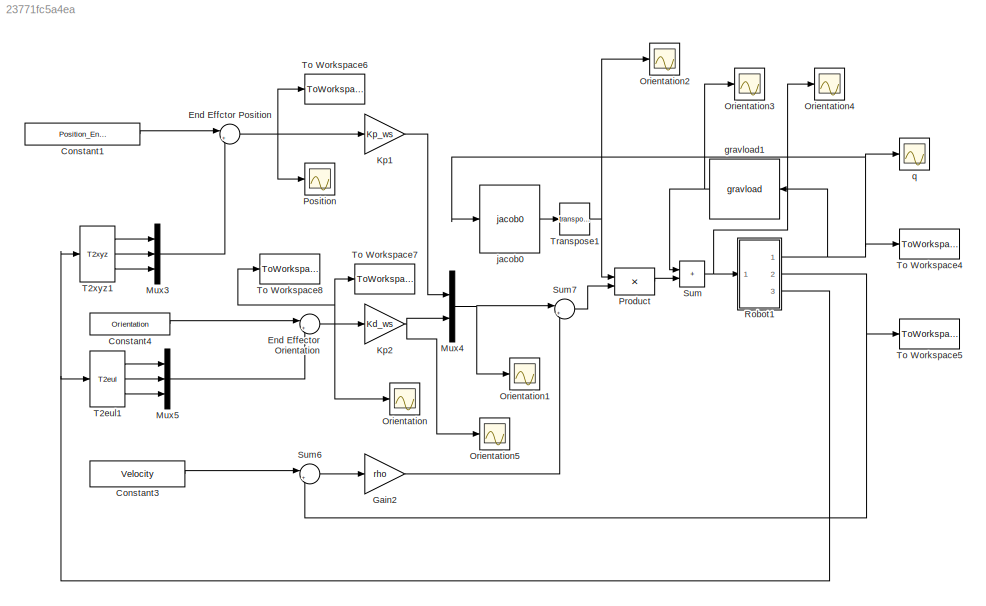
MODEL slx_23771fc5a4ea
KIND model
CONFIG AbsTol = auto
CONFIG EnableMultiTasking = off
CONFIG FixedStep = 1e-3
CONFIG MaxStep = auto
CONFIG MinStep = auto
CONFIG RelTol = 1e-5
CONFIG SampleTimeConstraint = Unconstrained
CONFIG SolverName = VariableStepAuto
CONFIG StartTime = 0.0
CONFIG StopTime = 3
BLOCK [Constant] Constant1
  Value = Position_End_effector
BLOCK [Constant] Constant3
  Value = Velocity
BLOCK [Constant] Constant4
  Value = Orientation
BLOCK [Sum] End Effctor Position
  Inputs = |+-
  Ports = [2, 1]
BLOCK [Sum] End Effector Orientation
  Inputs = |+-
  Ports = [2, 1]
BLOCK [Gain] Gain2
  Gain = rho
BLOCK [Gain] Kp1
  Gain = Kp_ws
BLOCK [Gain] Kp2
  Gain = Kd_ws
BLOCK [Mux] Mux3
  DisplayOption = bar
  Inputs = 3
  Ports = [3, 1]
BLOCK [Mux] Mux4
  DisplayOption = bar
  Inputs = 2
  Ports = [2, 1]
BLOCK [Mux] Mux5
  DisplayOption = bar
  Inputs = 3
  Ports = [3, 1]
BLOCK [Scope] Orientation
  Floating = off
  NumInputPorts = 1
  Ports = [1]
  ScopeSpecificationString = Simulink.scopes.TimeScopeBlockCfg('CurrentConfiguration', extmgr.ConfigurationSet(extmgr.Configuration('Core','General UI',true),extmgr.Configuration('Core','Source UI',true),extmgr.Configuration('Sources','WiredSimulink',true,'DataLoggingVariableName','ScopeData2'),extmgr.Configuration('Visuals','Time Domain',true,'SerializedDisplays',{struct('MinYLimReal','-0.2018','MaxYLimReal','0.09779','YLabe...<+1519ch>
BLOCK [Scope] Orientation1
  Floating = off
  NumInputPorts = 1
  Ports = [1]
  ScopeSpecificationString = Simulink.scopes.TimeScopeBlockCfg('CurrentConfiguration', extmgr.ConfigurationSet(extmgr.Configuration('Core','General UI',true),extmgr.Configuration('Core','Source UI',true),extmgr.Configuration('Sources','WiredSimulink',true,'DataLoggingVariableName','ScopeData1'),extmgr.Configuration('Visuals','Time Domain',true,'SerializedDisplays',{struct('MinYLimReal','-71.92583','MaxYLimReal','182.52468','Y...<+1464ch>
BLOCK [Scope] Orientation2
  Floating = off
  NumInputPorts = 1
  Ports = [1]
  ScopeSpecificationString = Simulink.scopes.TimeScopeBlockCfg('CurrentConfiguration', extmgr.ConfigurationSet(extmgr.Configuration('Core','General UI',true),extmgr.Configuration('Core','Source UI',true),extmgr.Configuration('Sources','WiredSimulink',true,'DataLoggingVariableName','ScopeData2'),extmgr.Configuration('Visuals','Time Domain',true,'SerializedDisplays',{struct('MinYLimReal','-0.34862','MaxYLimReal','3.5135','YLabe...<+1966ch>
BLOCK [Scope] Orientation3
  Floating = off
  NumInputPorts = 1
  Ports = [1]
  ScopeSpecificationString = Simulink.scopes.TimeScopeBlockCfg('CurrentConfiguration', extmgr.ConfigurationSet(extmgr.Configuration('Core','General UI',true),extmgr.Configuration('Core','Source UI',true),extmgr.Configuration('Sources','WiredSimulink',true,'DataLoggingVariableName','ScopeData3'),extmgr.Configuration('Visuals','Time Domain',true,'SerializedDisplays',{struct('MinYLimReal','-7.00066','MaxYLimReal','42.39498','YLa...<+1490ch>
BLOCK [Scope] Orientation4
  Floating = off
  NumInputPorts = 1
  Ports = [1]
  ScopeSpecificationString = Simulink.scopes.TimeScopeBlockCfg('CurrentConfiguration', extmgr.ConfigurationSet(extmgr.Configuration('Core','General UI',true),extmgr.Configuration('Core','Source UI',true),extmgr.Configuration('Sources','WiredSimulink',true,'DataLoggingVariableName','ScopeData4'),extmgr.Configuration('Visuals','Time Domain',true,'SerializedDisplays',{struct('MinYLimReal','-30.00637','MaxYLimReal','177.86697','Y...<+1460ch>
BLOCK [Scope] Orientation5
  Floating = off
  NumInputPorts = 1
  Ports = [1]
  ScopeSpecificationString = Simulink.scopes.TimeScopeBlockCfg('CurrentConfiguration', extmgr.ConfigurationSet(extmgr.Configuration('Core','General UI',true),extmgr.Configuration('Core','Source UI',true),extmgr.Configuration('Sources','WiredSimulink',true,'DataLoggingVariableName','ScopeData5'),extmgr.Configuration('Visuals','Time Domain',true,'SerializedDisplays',{struct('MinYLimReal','-71.92583','MaxYLimReal','182.52468','Y...<+1437ch>
BLOCK [Scope] Position
  Floating = off
  NumInputPorts = 1
  Ports = [1]
  ScopeSpecificationString = Simulink.scopes.TimeScopeBlockCfg('CurrentConfiguration', extmgr.ConfigurationSet(extmgr.Configuration('Core','General UI',true),extmgr.Configuration('Core','Source UI',true),extmgr.Configuration('Sources','WiredSimulink',true,'DataLoggingVariableName','ScopeData3'),extmgr.Configuration('Visuals','Time Domain',true,'SerializedDisplays',{struct('MinYLimReal','-0.03107','MaxYLimReal','0.01839','YLab...<+1599ch>
BLOCK [Product] Product
  Multiplication = Matrix(*)
  Ports = [2, 1]
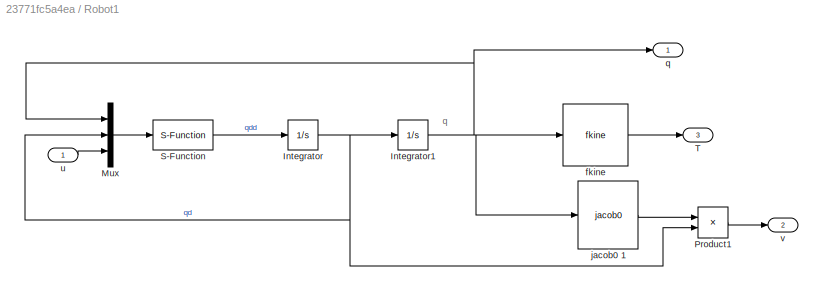
BLOCK [SubSystem] Robot1
  Ports = [1, 3]
  RequestExecContextInheritance = off
BLOCK [Integrator] Robot1/Integrator
  Ports = [1, 1]
BLOCK [Integrator] Robot1/Integrator1
  InitialCondition = q0
  Ports = [1, 1]
BLOCK [Mux] Robot1/Mux
  DisplayOption = bar
  Inputs = 3
  Ports = [3, 1]
BLOCK [Product] Robot1/Product1
  Multiplication = Matrix(*)
  Ports = [2, 1]
BLOCK [S-Function] Robot1/S-Function
  EnableBusSupport = off
  FunctionName = slaccel
  Parameters = p560_nofric
  Ports = [1, 1]
  SFcnIsStateOwnerBlock = off
  SFunctionDeploymentMode = off
BLOCK [Outport] Robot1/T
  Port = 3
  VectorParamsAs1DForOutWhenUnconnected = off
BLOCK [Reference] Robot1/fkine  REF=roblocks/Arm/fkine  (lib defined in mdl_2a292b13c81b, mdl_69400f8cfe22, +12 more)
  Ports = [1, 1]
  SourceBlock = roblocks/Arm/fkine
BLOCK [Reference] Robot1/jacob0 1  REF=roblocks/Arm/jacob0  (lib defined in mdl_2a292b13c81b, mdl_69400f8cfe22, +12 more)

  Ports = [1, 1]
  SourceBlock = roblocks/Arm/jacob0
BLOCK [Outport] Robot1/q
  VectorParamsAs1DForOutWhenUnconnected = off
BLOCK [Inport] Robot1/u
BLOCK [Outport] Robot1/v
  Port = 2
  VectorParamsAs1DForOutWhenUnconnected = off
BLOCK [Sum] Sum
  IconShape = rectangular
  Inputs = |++
  Ports = [2, 1]
BLOCK [Sum] Sum6
  Inputs = |+-
  Ports = [2, 1]
BLOCK [Sum] Sum7
  Inputs = |++
  Ports = [2, 1]
BLOCK [Reference] T2eul1  REF=roblocks/Toolbox/T2eul  (lib defined in mdl_2a292b13c81b, mdl_69400f8cfe22, +12 more)
  Ports = [1, 3]
  SourceBlock = roblocks/Toolbox/T2eul
BLOCK [Reference] T2xyz1  REF=roblocks/Toolbox/T2xyz  (lib defined in mdl_2a292b13c81b, mdl_69400f8cfe22, +12 more)
  Ports = [1, 3]
  SourceBlock = roblocks/Toolbox/T2xyz
BLOCK [ToWorkspace] To Workspace4
  FixptAsFi = on
  MaxDataPoints = inf
  Ports = [1]
  SampleTime = -1
  SaveFormat = Timeseries
  VariableName = qql_ws
BLOCK [ToWorkspace] To Workspace5
  FixptAsFi = on
  MaxDataPoints = inf
  Ports = [1]
  SampleTime = -1
  VariableName = vl_ws
BLOCK [ToWorkspace] To Workspace6
  FixptAsFi = on
  MaxDataPoints = inf
  Ports = [1]
  SampleTime = -1
  VariableName = eql_end_effector_ws
BLOCK [ToWorkspace] To Workspace7
  FixptAsFi = on
  MaxDataPoints = inf
  Ports = [1]
  SampleTime = -1
  VariableName = eql_ws1
BLOCK [ToWorkspace] To Workspace8
  FixptAsFi = on
  MaxDataPoints = inf
  Ports = [1]
  SampleTime = -1
  VariableName = eql_orientation_ws1
BLOCK [Math] Transpose1
  Operator = transpose
  Ports = [1, 1]
BLOCK [Reference] gravload1  REF=roblocks/Arm/gravload  (lib defined in mdl_2a292b13c81b, mdl_69400f8cfe22, +12 more)
  Ports = [1, 1]
  SourceBlock = roblocks/Arm/gravload
BLOCK [Reference] jacob0   REF=roblocks/Arm/jacob0  (lib defined in mdl_2a292b13c81b, mdl_69400f8cfe22, +12 more)

  Ports = [1, 1]
  SourceBlock = roblocks/Arm/jacob0
BLOCK [Scope] q
  Floating = off
  NumInputPorts = 1
  Ports = [1]
  ScopeSpecificationString = Simulink.scopes.TimeScopeBlockCfg('CurrentConfiguration', extmgr.ConfigurationSet(extmgr.Configuration('Core','General UI',true),extmgr.Configuration('Core','Source UI',true),extmgr.Configuration('Sources','WiredSimulink',true,'DataLoggingVariableName','ScopeData4'),extmgr.Configuration('Visuals','Time Domain',true,'SerializedDisplays',{struct('MinYLimReal','-1.09211','MaxYLimReal','3.62253','YLab...<+1434ch>
ANNOTATION Robot1: q
LINE Constant1:1 -> End Effctor Position:1
LINE Constant3:1 -> Sum6:1
LINE Constant4:1 -> End Effector Orientation:1
NET End Effctor Position:1 -> Kp1:1, Position:1, To Workspace6:1
NET End Effector Orientation:1 -> Kp2:1, Orientation:1, To Workspace7:1, To Workspace8:1
LINE Gain2:1 -> Sum7:2
LINE Kp1:1 -> Mux4:1
NET Kp2:1 -> Mux4:2, Orientation5:1
LINE Mux3:1 -> End Effctor Position:2
NET Mux4:1 -> Orientation1:1, Sum7:1
LINE Mux5:1 -> End Effector Orientation:2
LINE Product:1 -> Sum:2
NET Robot1/Integrator1:1 -> Robot1/Mux:1, Robot1/fkine:1, Robot1/jacob0 1:1, Robot1/q:1
NET Robot1/Integrator:1 -> Robot1/Integrator1:1, Robot1/Mux:2, Robot1/Product1:2
LINE Robot1/Mux:1 -> Robot1/S-Function:1
LINE Robot1/Product1:1 -> Robot1/v:1
LINE Robot1/S-Function:1 -> Robot1/Integrator:1
LINE Robot1/fkine:1 -> Robot1/T:1
LINE Robot1/jacob0 1:1 -> Robot1/Product1:1
LINE Robot1/u:1 -> Robot1/Mux:3
NET Robot1:1 -> To Workspace4:1, gravload1:1, jacob0 :1, q:1
NET Robot1:2 -> Sum6:2, To Workspace5:1
NET Robot1:3 -> T2eul1:1, T2xyz1:1
LINE Sum6:1 -> Gain2:1
LINE Sum7:1 -> Product:2
NET Sum:1 -> Orientation4:1, Robot1:1
LINE T2eul1:1 -> Mux5:1
LINE T2eul1:2 -> Mux5:2
LINE T2eul1:3 -> Mux5:3
LINE T2xyz1:1 -> Mux3:1
LINE T2xyz1:2 -> Mux3:2
LINE T2xyz1:3 -> Mux3:3
NET Transpose1:1 -> Orientation2:1, Product:1
NET gravload1:1 -> Orientation3:1, Sum:1
LINE jacob0 :1 -> Transpose1:1
note: NET lines group one-source signal fan-out (src -> all destinations, sorted); 1:1 wires keep LINE
